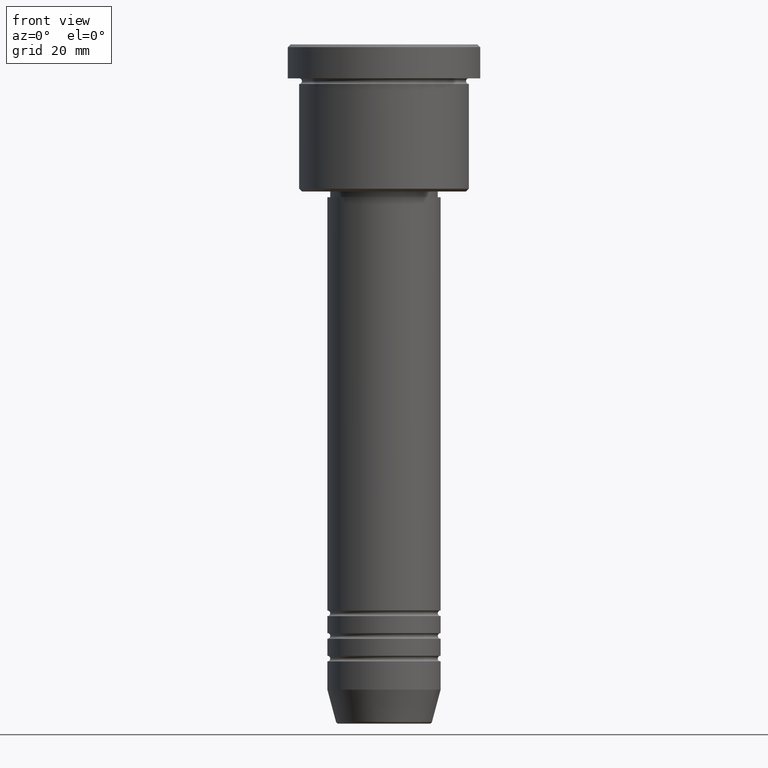
[diagram: clean part render]
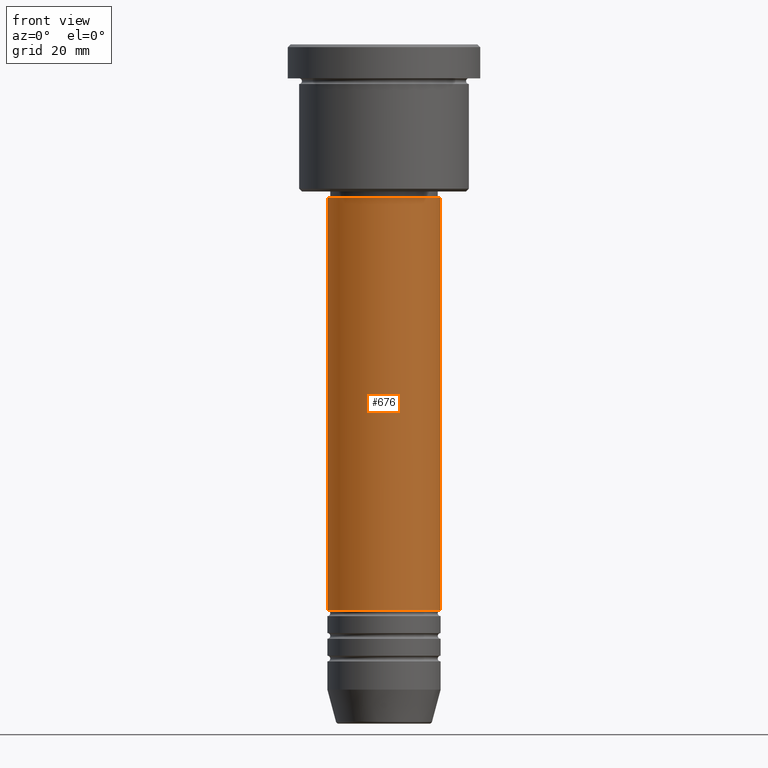
[diagram: same view with one face highlighted and labeled with its STEP entity id]
A machine part, front view. The second image highlights one B-rep face of the part: STEP entity #676.
In plain terms, the highlighted cylindrical surface (partial cylindrical patch) has radius 10 mm, axis along (-0, -0, 1).
Its self-contained STEP definition (entity closure, byte-faithful):
#10 = CARTESIAN_POINT ( 'NONE',  ( 10.00000000000000178, 0.000000000000000000, -99.99999999999997158 ) ) ;
#51 = CARTESIAN_POINT ( 'NONE',  ( 9.999999999999998224, 0.000000000000000000, -27.00000000000001776 ) ) ;
#52 = DIRECTION ( 'NONE',  ( -0.000000000000000000, -0.000000000000000000, 1.000000000000000000 ) ) ;
#131 = EDGE_LOOP ( 'NONE', ( #974, #897, #1010, #1026 ) ) ;
#136 = CARTESIAN_POINT ( 'NONE',  ( 0.000000000000000000, 0.000000000000000000, 0.000000000000000000 ) ) ;
#213 = EDGE_CURVE ( 'NONE', #328, #850, #519, .T. ) ;
#267 = CARTESIAN_POINT ( 'NONE',  ( 0.000000000000000000, 0.000000000000000000, -99.99999999999997158 ) ) ;
#284 = CARTESIAN_POINT ( 'NONE',  ( -10.00000000000000000, 1.224646799147353256E-15, 0.000000000000000000 ) ) ;
#328 = VERTEX_POINT ( 'NONE', #10 ) ;
#399 = LINE ( 'NONE', #284, #1162 ) ;
#402 = AXIS2_PLACEMENT_3D ( 'NONE', #267, #632, #731 ) ;
#426 = DIRECTION ( 'NONE',  ( -0.000000000000000000, -0.000000000000000000, 1.000000000000000000 ) ) ;
#430 = VERTEX_POINT ( 'NONE', #1126 ) ;
#519 = LINE ( 'NONE', #798, #1111 ) ;
#619 = DIRECTION ( 'NONE',  ( -0.000000000000000000, -0.000000000000000000, 1.000000000000000000 ) ) ;
#632 = DIRECTION ( 'NONE',  ( -0.000000000000000000, -0.000000000000000000, 1.000000000000000000 ) ) ;
#676 = ADVANCED_FACE ( 'NONE', ( #948 ), #955, .T. ) ;
#701 = EDGE_CURVE ( 'NONE', #1040, #850, #863, .T. ) ;
#716 = EDGE_CURVE ( 'NONE', #430, #328, #899, .T. ) ;
#731 = DIRECTION ( 'NONE',  ( 1.000000000000000000, 0.000000000000000000, 0.000000000000000000 ) ) ;
#795 = CARTESIAN_POINT ( 'NONE',  ( 0.000000000000000000, 0.000000000000000000, -27.00000000000001776 ) ) ;
#798 = CARTESIAN_POINT ( 'NONE',  ( 10.00000000000000000, 0.000000000000000000, 0.000000000000000000 ) ) ;
#850 = VERTEX_POINT ( 'NONE', #51 ) ;
#863 = CIRCLE ( 'NONE', #1016, 9.999999999999998224 ) ;
#874 = DIRECTION ( 'NONE',  ( 1.000000000000000000, 0.000000000000000000, 0.000000000000000000 ) ) ;
#897 = ORIENTED_EDGE ( 'NONE', *, *, #716, .T. ) ;
#899 = CIRCLE ( 'NONE', #402, 10.00000000000000178 ) ;
#935 = DIRECTION ( 'NONE',  ( -0.000000000000000000, -0.000000000000000000, 1.000000000000000000 ) ) ;
#948 = FACE_OUTER_BOUND ( 'NONE', #131, .T. ) ;
#955 = CYLINDRICAL_SURFACE ( 'NONE', #1133, 10.00000000000000000 ) ;
#970 = DIRECTION ( 'NONE',  ( 1.000000000000000000, 0.000000000000000000, 0.000000000000000000 ) ) ;
#974 = ORIENTED_EDGE ( 'NONE', *, *, #1103, .F. ) ;
#1010 = ORIENTED_EDGE ( 'NONE', *, *, #213, .T. ) ;
#1016 = AXIS2_PLACEMENT_3D ( 'NONE', #795, #619, #970 ) ;
#1026 = ORIENTED_EDGE ( 'NONE', *, *, #701, .F. ) ;
#1040 = VERTEX_POINT ( 'NONE', #1155 ) ;
#1103 = EDGE_CURVE ( 'NONE', #430, #1040, #399, .T. ) ;
#1111 = VECTOR ( 'NONE', #52, 1000.000000000000000 ) ;
#1126 = CARTESIAN_POINT ( 'NONE',  ( -10.00000000000000178, 1.224646799147353454E-15, -99.99999999999997158 ) ) ;
#1133 = AXIS2_PLACEMENT_3D ( 'NONE', #136, #426, #874 ) ;
#1155 = CARTESIAN_POINT ( 'NONE',  ( -9.999999999999998224, 1.224646799147353256E-15, -27.00000000000001776 ) ) ;
#1162 = VECTOR ( 'NONE', #935, 1000.000000000000000 ) ;